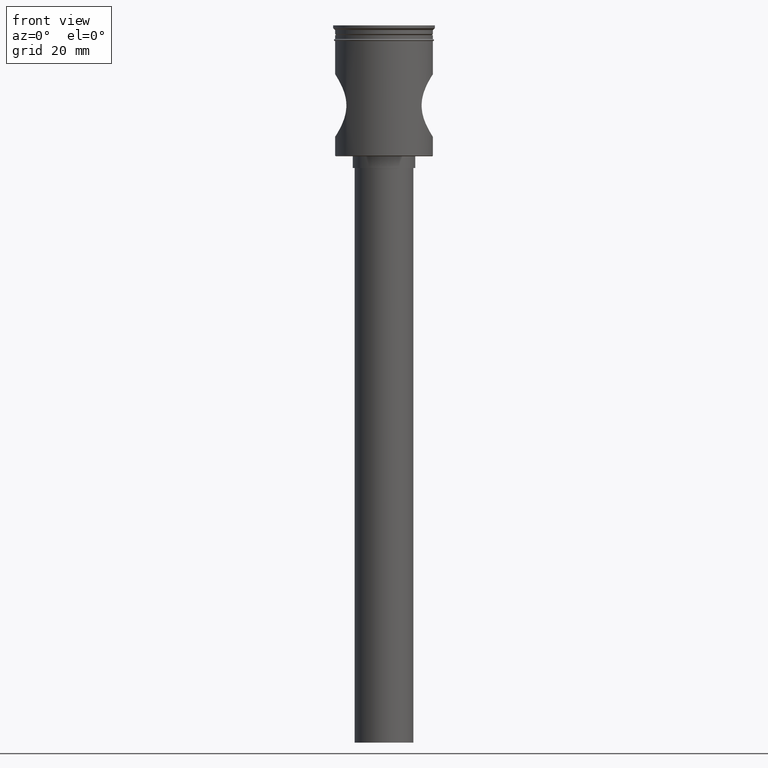
[diagram: clean part render]
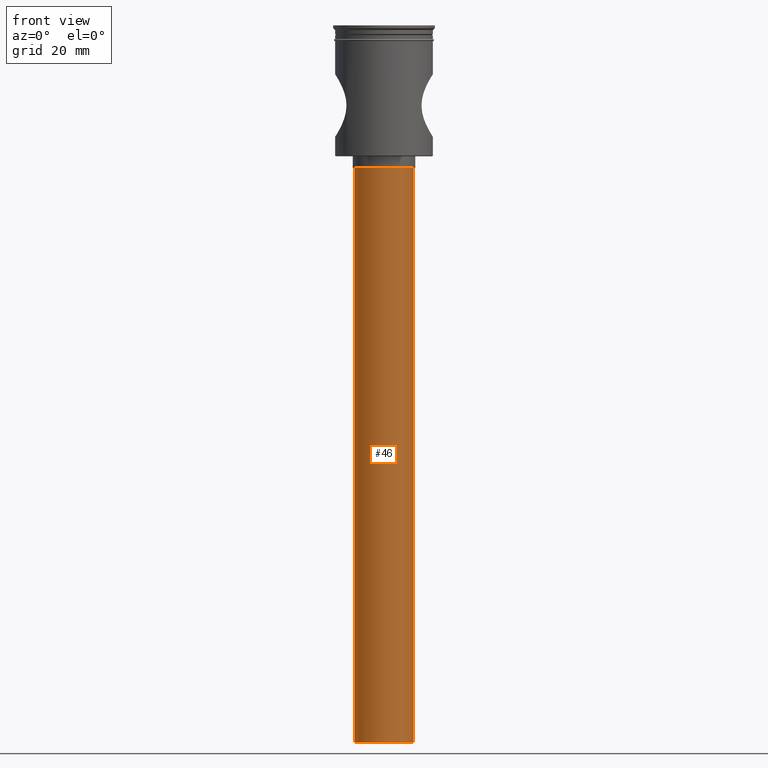
[diagram: same view with one face highlighted and labeled with its STEP entity id]
A machine part, front view. The second image highlights one B-rep face of the part: STEP entity #46.
In plain terms, the highlighted cylindrical surface (edge-blend (fillet) strip) has radius 7.5 mm, axis along (-0, -0, 1).
Its self-contained STEP definition (entity closure, byte-faithful):
#20 = ORIENTED_EDGE ( 'NONE', *, *, #1174, .F. ) ;
#46 = ADVANCED_FACE ( 'NONE', ( #1504 ), #423, .T. ) ;
#50 = LINE ( 'NONE', #1473, #91 ) ;
#82 = ORIENTED_EDGE ( 'NONE', *, *, #598, .T. ) ;
#91 = VECTOR ( 'NONE', #649, 1000.000000000000000 ) ;
#142 = CARTESIAN_POINT ( 'NONE',  ( 0.000000000000000000, 0.000000000000000000, -36.50000000000000711 ) ) ;
#152 = VECTOR ( 'NONE', #694, 1000.000000000000000 ) ;
#170 = VERTEX_POINT ( 'NONE', #1439 ) ;
#194 = CARTESIAN_POINT ( 'NONE',  ( -7.500000000000000000, 9.184850993605147944E-16, -36.50000000000000711 ) ) ;
#198 = CARTESIAN_POINT ( 'NONE',  ( 7.500000000000000000, 0.000000000000000000, -183.5000000000000000 ) ) ;
#306 = VERTEX_POINT ( 'NONE', #590 ) ;
#338 = DIRECTION ( 'NONE',  ( 1.000000000000000000, 0.000000000000000000, 0.000000000000000000 ) ) ;
#372 = ORIENTED_EDGE ( 'NONE', *, *, #1124, .T. ) ;
#423 = CYLINDRICAL_SURFACE ( 'NONE', #445, 7.500000000000000000 ) ;
#433 = AXIS2_PLACEMENT_3D ( 'NONE', #142, #846, #735 ) ;
#445 = AXIS2_PLACEMENT_3D ( 'NONE', #761, #811, #338 ) ;
#507 = DIRECTION ( 'NONE',  ( -1.000000000000000000, 0.000000000000000000, 0.000000000000000000 ) ) ;
#523 = DIRECTION ( 'NONE',  ( 0.000000000000000000, 0.000000000000000000, -1.000000000000000000 ) ) ;
#590 = CARTESIAN_POINT ( 'NONE',  ( -7.500000000000000000, 9.184850993605147944E-16, -183.5000000000000000 ) ) ;
#598 = EDGE_CURVE ( 'NONE', #1049, #973, #915, .T. ) ;
#649 = DIRECTION ( 'NONE',  ( -0.000000000000000000, -0.000000000000000000, 1.000000000000000000 ) ) ;
#694 = DIRECTION ( 'NONE',  ( -0.000000000000000000, -0.000000000000000000, 1.000000000000000000 ) ) ;
#712 = EDGE_CURVE ( 'NONE', #170, #306, #1004, .T. ) ;
#735 = DIRECTION ( 'NONE',  ( -1.000000000000000000, 0.000000000000000000, 0.000000000000000000 ) ) ;
#761 = CARTESIAN_POINT ( 'NONE',  ( 0.000000000000000000, 0.000000000000000000, -183.5000000000000000 ) ) ;
#775 = CARTESIAN_POINT ( 'NONE',  ( 0.000000000000000000, 0.000000000000000000, -183.5000000000000000 ) ) ;
#779 = CARTESIAN_POINT ( 'NONE',  ( 7.500000000000000000, 0.000000000000000000, -36.50000000000000711 ) ) ;
#811 = DIRECTION ( 'NONE',  ( -0.000000000000000000, -0.000000000000000000, 1.000000000000000000 ) ) ;
#846 = DIRECTION ( 'NONE',  ( 0.000000000000000000, 0.000000000000000000, -1.000000000000000000 ) ) ;
#915 = CIRCLE ( 'NONE', #433, 7.500000000000000000 ) ;
#973 = VERTEX_POINT ( 'NONE', #194 ) ;
#1004 = CIRCLE ( 'NONE', #1363, 7.500000000000000000 ) ;
#1021 = ORIENTED_EDGE ( 'NONE', *, *, #712, .F. ) ;
#1027 = LINE ( 'NONE', #198, #152 ) ;
#1049 = VERTEX_POINT ( 'NONE', #779 ) ;
#1124 = EDGE_CURVE ( 'NONE', #170, #1049, #1027, .T. ) ;
#1174 = EDGE_CURVE ( 'NONE', #306, #973, #50, .T. ) ;
#1363 = AXIS2_PLACEMENT_3D ( 'NONE', #775, #523, #507 ) ;
#1439 = CARTESIAN_POINT ( 'NONE',  ( 7.500000000000000000, 0.000000000000000000, -183.5000000000000000 ) ) ;
#1473 = CARTESIAN_POINT ( 'NONE',  ( -7.500000000000000000, 9.184850993605147944E-16, -183.5000000000000000 ) ) ;
#1504 = FACE_OUTER_BOUND ( 'NONE', #1552, .T. ) ;
#1552 = EDGE_LOOP ( 'NONE', ( #20, #1021, #372, #82 ) ) ;